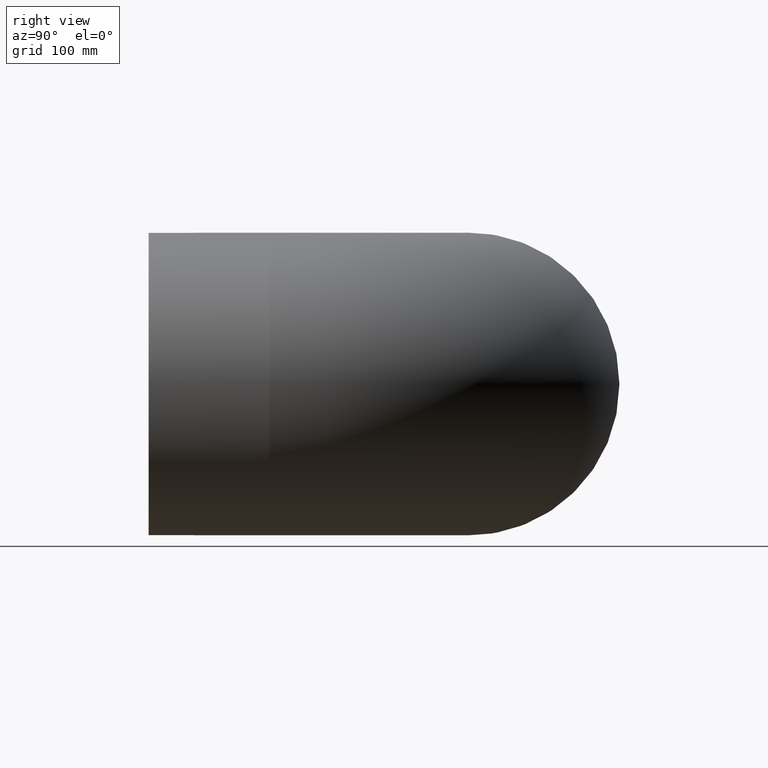
[diagram: clean part render]
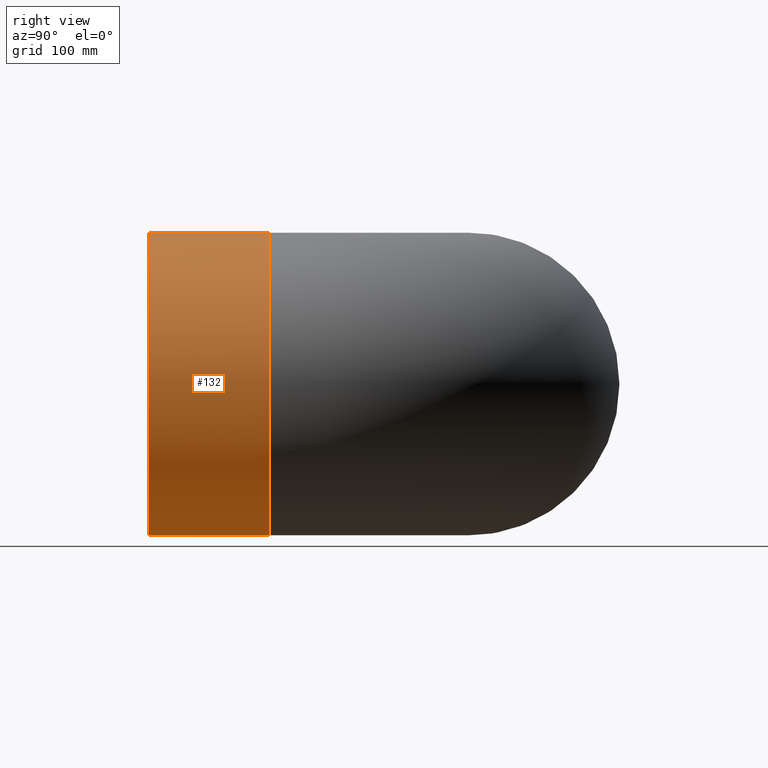
[diagram: same view with one face highlighted and labeled with its STEP entity id]
A machine part, right view. The second image highlights one B-rep face of the part: STEP entity #132.
In plain terms, the highlighted cylindrical surface (bore or boss wall) has radius 143 mm, axis along (0, 1, 0).
Its self-contained STEP definition (entity closure, byte-faithful):
#21=CYLINDRICAL_SURFACE('',#154,143.);
#30=FACE_BOUND('',#60,.T.);
#41=FACE_OUTER_BOUND('',#59,.T.);
#59=EDGE_LOOP('',(#114));
#60=EDGE_LOOP('',(#115));
#73=CIRCLE('',#150,143.);
#75=CIRCLE('',#153,143.);
#84=VERTEX_POINT('',#225);
#86=VERTEX_POINT('',#230);
#95=EDGE_CURVE('',#84,#84,#73,.T.);
#97=EDGE_CURVE('',#86,#86,#75,.T.);
#114=ORIENTED_EDGE('',*,*,#97,.T.);
#115=ORIENTED_EDGE('',*,*,#95,.F.);
#132=ADVANCED_FACE('',(#41,#30),#21,.T.);
#150=AXIS2_PLACEMENT_3D('',#226,#186,#187);
#153=AXIS2_PLACEMENT_3D('',#231,#192,#193);
#154=AXIS2_PLACEMENT_3D('',#232,#194,#195);
#186=DIRECTION('center_axis',(6.12323399573677E-17,1.,0.));
#187=DIRECTION('ref_axis',(0.,0.,-1.));
#192=DIRECTION('center_axis',(6.12323399573677E-17,1.,0.));
#193=DIRECTION('ref_axis',(0.,0.,-1.));
#194=DIRECTION('center_axis',(6.12323399573677E-17,1.,0.));
#195=DIRECTION('ref_axis',(-1.,6.12323399573677E-17,0.));
#225=CARTESIAN_POINT('',(-1.77635683940025E-14,-188.,143.));
#226=CARTESIAN_POINT('Origin',(-1.15116799119851E-14,-188.,0.));
#230=CARTESIAN_POINT('',(-143.,-302.,0.));
#231=CARTESIAN_POINT('Origin',(-1.8492166667125E-14,-302.,0.));
#232=CARTESIAN_POINT('Origin',(-1.50019232895551E-14,-245.,0.));